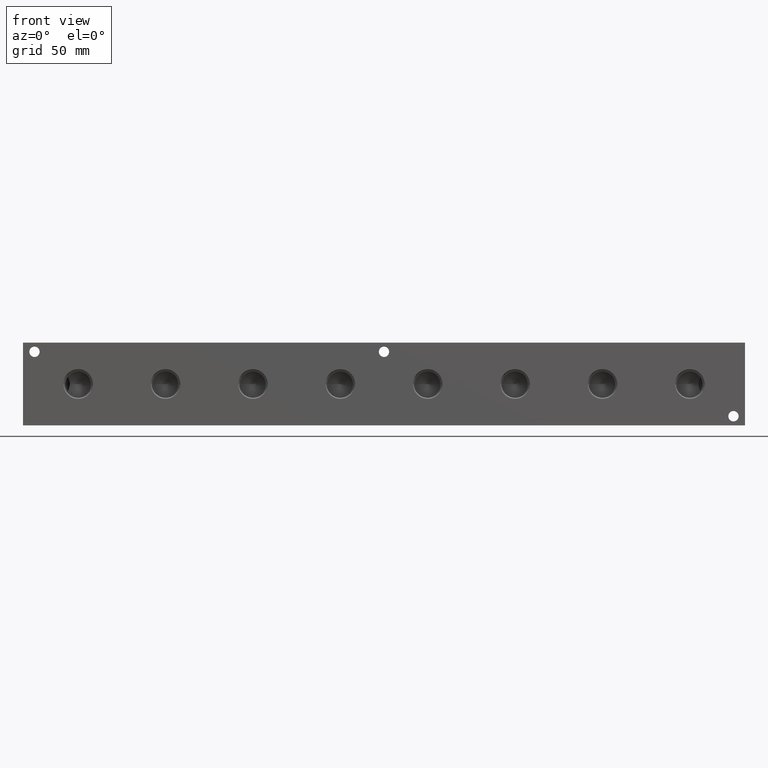
[diagram: clean part render]
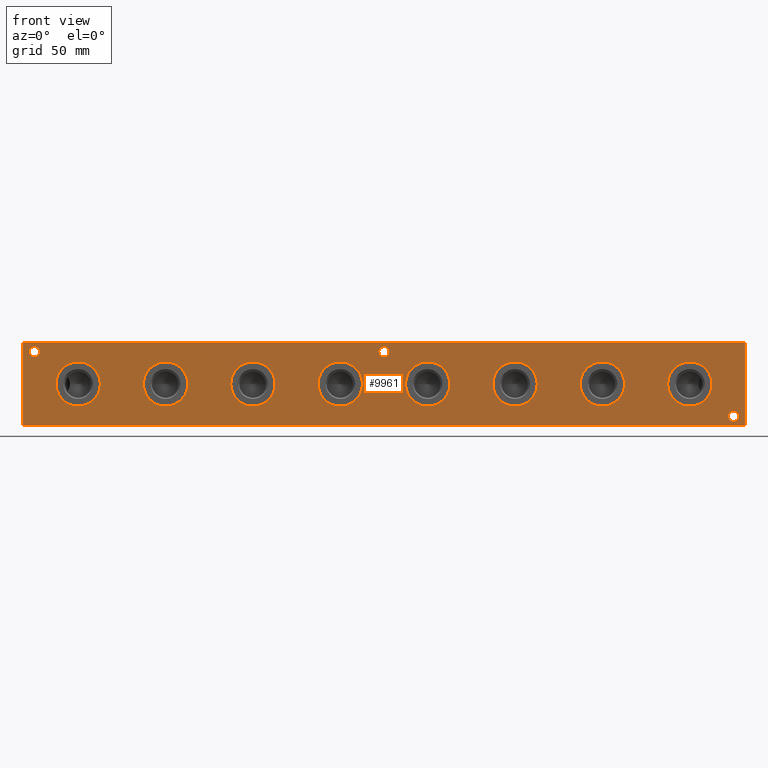
[diagram: same view with one face highlighted and labeled with its STEP entity id]
A machine part, front view. The second image highlights one B-rep face of the part: STEP entity #9961.
In plain terms, the highlighted planar face has unit normal (0, -1, 0).
Its self-contained STEP definition (entity closure, byte-faithful):
#202=CIRCLE('',#10195,3.5687);
#203=CIRCLE('',#10196,3.5687);
#205=CIRCLE('',#10205,3.5687);
#206=CIRCLE('',#10206,3.5687);
#208=CIRCLE('',#10214,3.5687);
#209=CIRCLE('',#10215,3.5687);
#211=CIRCLE('',#10225,15.3162);
#212=CIRCLE('',#10226,15.3162);
#222=CIRCLE('',#10241,15.3162);
#223=CIRCLE('',#10242,15.3162);
#233=CIRCLE('',#10257,15.3162);
#234=CIRCLE('',#10258,15.3162);
#244=CIRCLE('',#10273,15.3162);
#245=CIRCLE('',#10274,15.3162);
#255=CIRCLE('',#10289,15.3162);
#256=CIRCLE('',#10290,15.3162);
#266=CIRCLE('',#10305,15.3162);
#267=CIRCLE('',#10306,15.3162);
#277=CIRCLE('',#10321,15.3162);
#278=CIRCLE('',#10322,15.3162);
#332=CIRCLE('',#10415,15.3162);
#333=CIRCLE('',#10416,15.3162);
#593=FACE_BOUND('',#1962,.T.);
#594=FACE_BOUND('',#1963,.T.);
#595=FACE_BOUND('',#1964,.T.);
#596=FACE_BOUND('',#1965,.T.);
#597=FACE_BOUND('',#1966,.T.);
#598=FACE_BOUND('',#1967,.T.);
#599=FACE_BOUND('',#1968,.T.);
#600=FACE_BOUND('',#1969,.T.);
#601=FACE_BOUND('',#1970,.T.);
#602=FACE_BOUND('',#1971,.T.);
#603=FACE_BOUND('',#1972,.T.);
#840=PLANE('',#10707);
#1359=FACE_OUTER_BOUND('',#1961,.T.);
#1961=EDGE_LOOP('',(#8968,#8969,#8970,#8971));
#1962=EDGE_LOOP('',(#8972,#8973));
#1963=EDGE_LOOP('',(#8974,#8975));
#1964=EDGE_LOOP('',(#8976,#8977));
#1965=EDGE_LOOP('',(#8978,#8979));
#1966=EDGE_LOOP('',(#8980,#8981));
#1967=EDGE_LOOP('',(#8982,#8983));
#1968=EDGE_LOOP('',(#8984,#8985));
#1969=EDGE_LOOP('',(#8986,#8987));
#1970=EDGE_LOOP('',(#8988,#8989));
#1971=EDGE_LOOP('',(#8990,#8991));
#1972=EDGE_LOOP('',(#8992,#8993));
#2219=LINE('',#15513,#3003);
#2755=LINE('',#17627,#3539);
#2760=LINE('',#17636,#3544);
#2761=LINE('',#17638,#3545);
#3003=VECTOR('',#11055,10.);
#3539=VECTOR('',#12943,10.);
#3544=VECTOR('',#12952,10.);
#3545=VECTOR('',#12955,10.);
#4148=VERTEX_POINT('',#15511);
#4149=VERTEX_POINT('',#15512);
#4436=VERTEX_POINT('',#16474);
#4437=VERTEX_POINT('',#16475);
#4441=VERTEX_POINT('',#16492);
#4442=VERTEX_POINT('',#16493);
#4446=VERTEX_POINT('',#16508);
#4447=VERTEX_POINT('',#16509);
#4451=VERTEX_POINT('',#16528);
#4452=VERTEX_POINT('',#16529);
#4462=VERTEX_POINT('',#16559);
#4463=VERTEX_POINT('',#16560);
#4473=VERTEX_POINT('',#16590);
#4474=VERTEX_POINT('',#16591);
#4484=VERTEX_POINT('',#16621);
#4485=VERTEX_POINT('',#16622);
#4495=VERTEX_POINT('',#16652);
#4496=VERTEX_POINT('',#16653);
#4506=VERTEX_POINT('',#16683);
#4507=VERTEX_POINT('',#16684);
#4517=VERTEX_POINT('',#16714);
#4518=VERTEX_POINT('',#16715);
#4597=VERTEX_POINT('',#17036);
#4598=VERTEX_POINT('',#17037);
#4783=VERTEX_POINT('',#17625);
#4785=VERTEX_POINT('',#17634);
#5269=EDGE_CURVE('',#4148,#4149,#2219,.T.);
#5688=EDGE_CURVE('',#4436,#4437,#202,.T.);
#5689=EDGE_CURVE('',#4437,#4436,#203,.T.);
#5698=EDGE_CURVE('',#4441,#4442,#205,.T.);
#5699=EDGE_CURVE('',#4442,#4441,#206,.T.);
#5707=EDGE_CURVE('',#4446,#4447,#208,.T.);
#5708=EDGE_CURVE('',#4447,#4446,#209,.T.);
#5718=EDGE_CURVE('',#4451,#4452,#211,.T.);
#5719=EDGE_CURVE('',#4452,#4451,#212,.T.);
#5733=EDGE_CURVE('',#4462,#4463,#222,.T.);
#5734=EDGE_CURVE('',#4463,#4462,#223,.T.);
#5748=EDGE_CURVE('',#4473,#4474,#233,.T.);
#5749=EDGE_CURVE('',#4474,#4473,#234,.T.);
#5763=EDGE_CURVE('',#4484,#4485,#244,.T.);
#5764=EDGE_CURVE('',#4485,#4484,#245,.T.);
#5778=EDGE_CURVE('',#4495,#4496,#255,.T.);
#5779=EDGE_CURVE('',#4496,#4495,#256,.T.);
#5793=EDGE_CURVE('',#4506,#4507,#266,.T.);
#5794=EDGE_CURVE('',#4507,#4506,#267,.T.);
#5808=EDGE_CURVE('',#4517,#4518,#277,.T.);
#5809=EDGE_CURVE('',#4518,#4517,#278,.T.);
#5912=EDGE_CURVE('',#4597,#4598,#332,.T.);
#5913=EDGE_CURVE('',#4598,#4597,#333,.T.);
#6185=EDGE_CURVE('',#4783,#4148,#2755,.T.);
#6190=EDGE_CURVE('',#4785,#4149,#2760,.T.);
#6191=EDGE_CURVE('',#4783,#4785,#2761,.T.);
#8968=ORIENTED_EDGE('',*,*,#6191,.T.);
#8969=ORIENTED_EDGE('',*,*,#6190,.T.);
#8970=ORIENTED_EDGE('',*,*,#5269,.F.);
#8971=ORIENTED_EDGE('',*,*,#6185,.F.);
#8972=ORIENTED_EDGE('',*,*,#5688,.T.);
#8973=ORIENTED_EDGE('',*,*,#5689,.T.);
#8974=ORIENTED_EDGE('',*,*,#5698,.T.);
#8975=ORIENTED_EDGE('',*,*,#5699,.T.);
#8976=ORIENTED_EDGE('',*,*,#5707,.T.);
#8977=ORIENTED_EDGE('',*,*,#5708,.T.);
#8978=ORIENTED_EDGE('',*,*,#5718,.T.);
#8979=ORIENTED_EDGE('',*,*,#5719,.T.);
#8980=ORIENTED_EDGE('',*,*,#5733,.T.);
#8981=ORIENTED_EDGE('',*,*,#5734,.T.);
#8982=ORIENTED_EDGE('',*,*,#5748,.T.);
#8983=ORIENTED_EDGE('',*,*,#5749,.T.);
#8984=ORIENTED_EDGE('',*,*,#5763,.T.);
#8985=ORIENTED_EDGE('',*,*,#5764,.T.);
#8986=ORIENTED_EDGE('',*,*,#5778,.T.);
#8987=ORIENTED_EDGE('',*,*,#5779,.T.);
#8988=ORIENTED_EDGE('',*,*,#5793,.T.);
#8989=ORIENTED_EDGE('',*,*,#5794,.T.);
#8990=ORIENTED_EDGE('',*,*,#5808,.T.);
#8991=ORIENTED_EDGE('',*,*,#5809,.T.);
#8992=ORIENTED_EDGE('',*,*,#5912,.T.);
#8993=ORIENTED_EDGE('',*,*,#5913,.T.);
#9961=ADVANCED_FACE('',(#1359,#593,#594,#595,#596,#597,#598,#599,#600,#601,
#602,#603),#840,.T.);
#10195=AXIS2_PLACEMENT_3D('',#16476,#11768,#11769);
#10196=AXIS2_PLACEMENT_3D('',#16477,#11770,#11771);
#10205=AXIS2_PLACEMENT_3D('',#16494,#11791,#11792);
#10206=AXIS2_PLACEMENT_3D('',#16495,#11793,#11794);
#10214=AXIS2_PLACEMENT_3D('',#16510,#11811,#11812);
#10215=AXIS2_PLACEMENT_3D('',#16511,#11813,#11814);
#10225=AXIS2_PLACEMENT_3D('',#16530,#11837,#11838);
#10226=AXIS2_PLACEMENT_3D('',#16531,#11839,#11840);
#10241=AXIS2_PLACEMENT_3D('',#16561,#11873,#11874);
#10242=AXIS2_PLACEMENT_3D('',#16562,#11875,#11876);
#10257=AXIS2_PLACEMENT_3D('',#16592,#11909,#11910);
#10258=AXIS2_PLACEMENT_3D('',#16593,#11911,#11912);
#10273=AXIS2_PLACEMENT_3D('',#16623,#11945,#11946);
#10274=AXIS2_PLACEMENT_3D('',#16624,#11947,#11948);
#10289=AXIS2_PLACEMENT_3D('',#16654,#11981,#11982);
#10290=AXIS2_PLACEMENT_3D('',#16655,#11983,#11984);
#10305=AXIS2_PLACEMENT_3D('',#16685,#12017,#12018);
#10306=AXIS2_PLACEMENT_3D('',#16686,#12019,#12020);
#10321=AXIS2_PLACEMENT_3D('',#16716,#12053,#12054);
#10322=AXIS2_PLACEMENT_3D('',#16717,#12055,#12056);
#10415=AXIS2_PLACEMENT_3D('',#17038,#12271,#12272);
#10416=AXIS2_PLACEMENT_3D('',#17039,#12273,#12274);
#10707=AXIS2_PLACEMENT_3D('',#17637,#12953,#12954);
#11055=DIRECTION('',(1.,0.,0.));
#11768=DIRECTION('center_axis',(0.,1.,0.));
#11769=DIRECTION('ref_axis',(1.,0.,0.));
#11770=DIRECTION('center_axis',(0.,1.,0.));
#11771=DIRECTION('ref_axis',(1.,0.,0.));
#11791=DIRECTION('center_axis',(0.,1.,0.));
#11792=DIRECTION('ref_axis',(1.,0.,0.));
#11793=DIRECTION('center_axis',(0.,1.,0.));
#11794=DIRECTION('ref_axis',(1.,0.,0.));
#11811=DIRECTION('center_axis',(0.,1.,0.));
#11812=DIRECTION('ref_axis',(1.,0.,0.));
#11813=DIRECTION('center_axis',(0.,1.,0.));
#11814=DIRECTION('ref_axis',(1.,0.,0.));
#11837=DIRECTION('center_axis',(0.,1.,0.));
#11838=DIRECTION('ref_axis',(1.,0.,0.));
#11839=DIRECTION('center_axis',(0.,1.,0.));
#11840=DIRECTION('ref_axis',(1.,0.,0.));
#11873=DIRECTION('center_axis',(0.,1.,0.));
#11874=DIRECTION('ref_axis',(1.,0.,0.));
#11875=DIRECTION('center_axis',(0.,1.,0.));
#11876=DIRECTION('ref_axis',(1.,0.,0.));
#11909=DIRECTION('center_axis',(0.,1.,0.));
#11910=DIRECTION('ref_axis',(1.,0.,0.));
#11911=DIRECTION('center_axis',(0.,1.,0.));
#11912=DIRECTION('ref_axis',(1.,0.,0.));
#11945=DIRECTION('center_axis',(0.,1.,0.));
#11946=DIRECTION('ref_axis',(1.,0.,0.));
#11947=DIRECTION('center_axis',(0.,1.,0.));
#11948=DIRECTION('ref_axis',(1.,0.,0.));
#11981=DIRECTION('center_axis',(0.,1.,0.));
#11982=DIRECTION('ref_axis',(1.,0.,0.));
#11983=DIRECTION('center_axis',(0.,1.,0.));
#11984=DIRECTION('ref_axis',(1.,0.,0.));
#12017=DIRECTION('center_axis',(0.,1.,0.));
#12018=DIRECTION('ref_axis',(1.,0.,0.));
#12019=DIRECTION('center_axis',(0.,1.,0.));
#12020=DIRECTION('ref_axis',(1.,0.,0.));
#12053=DIRECTION('center_axis',(0.,1.,0.));
#12054=DIRECTION('ref_axis',(1.,0.,0.));
#12055=DIRECTION('center_axis',(0.,1.,0.));
#12056=DIRECTION('ref_axis',(1.,0.,0.));
#12271=DIRECTION('center_axis',(0.,1.,0.));
#12272=DIRECTION('ref_axis',(1.,0.,0.));
#12273=DIRECTION('center_axis',(0.,1.,0.));
#12274=DIRECTION('ref_axis',(1.,0.,0.));
#12943=DIRECTION('',(0.,0.,1.));
#12952=DIRECTION('',(0.,0.,1.));
#12953=DIRECTION('center_axis',(0.,-1.,0.));
#12954=DIRECTION('ref_axis',(1.,0.,0.));
#12955=DIRECTION('',(1.,0.,0.));
#15511=CARTESIAN_POINT('',(0.,0.,57.15));
#15512=CARTESIAN_POINT('',(498.475,0.,57.15));
#15513=CARTESIAN_POINT('',(0.,0.,57.15));
#16474=CARTESIAN_POINT('',(494.0935,0.,6.35));
#16475=CARTESIAN_POINT('',(486.9561,-7.105427357601E-14,6.35));
#16476=CARTESIAN_POINT('Origin',(490.5248,0.,6.35));
#16477=CARTESIAN_POINT('Origin',(490.5248,0.,6.35));
#16492=CARTESIAN_POINT('',(11.4935,0.,50.8));
#16493=CARTESIAN_POINT('',(4.3561,-7.105427357601E-14,50.8));
#16494=CARTESIAN_POINT('Origin',(7.9248,0.,50.8));
#16495=CARTESIAN_POINT('Origin',(7.9248,0.,50.8));
#16508=CARTESIAN_POINT('',(252.7935,0.,50.8));
#16509=CARTESIAN_POINT('',(245.6561,-7.105427357601E-14,50.8));
#16510=CARTESIAN_POINT('Origin',(249.2248,0.,50.8));
#16511=CARTESIAN_POINT('Origin',(249.2248,0.,50.8));
#16528=CARTESIAN_POINT('',(475.6912,0.,28.575));
#16529=CARTESIAN_POINT('',(445.0588,0.,28.575));
#16530=CARTESIAN_POINT('Origin',(460.375,0.,28.575));
#16531=CARTESIAN_POINT('Origin',(460.375,0.,28.575));
#16559=CARTESIAN_POINT('',(415.3662,0.,28.575));
#16560=CARTESIAN_POINT('',(384.7338,0.,28.575));
#16561=CARTESIAN_POINT('Origin',(400.05,0.,28.575));
#16562=CARTESIAN_POINT('Origin',(400.05,0.,28.575));
#16590=CARTESIAN_POINT('',(355.0412,0.,28.575));
#16591=CARTESIAN_POINT('',(324.4088,0.,28.575));
#16592=CARTESIAN_POINT('Origin',(339.725,0.,28.575));
#16593=CARTESIAN_POINT('Origin',(339.725,0.,28.575));
#16621=CARTESIAN_POINT('',(294.7162,0.,28.575));
#16622=CARTESIAN_POINT('',(264.0838,0.,28.575));
#16623=CARTESIAN_POINT('Origin',(279.4,0.,28.575));
#16624=CARTESIAN_POINT('Origin',(279.4,0.,28.575));
#16652=CARTESIAN_POINT('',(234.3912,0.,28.575));
#16653=CARTESIAN_POINT('',(203.7588,0.,28.575));
#16654=CARTESIAN_POINT('Origin',(219.075,0.,28.575));
#16655=CARTESIAN_POINT('Origin',(219.075,0.,28.575));
#16683=CARTESIAN_POINT('',(174.0662,0.,28.575));
#16684=CARTESIAN_POINT('',(143.4338,0.,28.575));
#16685=CARTESIAN_POINT('Origin',(158.75,0.,28.575));
#16686=CARTESIAN_POINT('Origin',(158.75,0.,28.575));
#16714=CARTESIAN_POINT('',(113.7412,0.,28.575));
#16715=CARTESIAN_POINT('',(83.1088,0.,28.575));
#16716=CARTESIAN_POINT('Origin',(98.425,0.,28.575));
#16717=CARTESIAN_POINT('Origin',(98.425,0.,28.575));
#17036=CARTESIAN_POINT('',(53.4162,0.,28.575));
#17037=CARTESIAN_POINT('',(22.7838,0.,28.575));
#17038=CARTESIAN_POINT('Origin',(38.1,0.,28.575));
#17039=CARTESIAN_POINT('Origin',(38.1,0.,28.575));
#17625=CARTESIAN_POINT('',(0.,0.,0.));
#17627=CARTESIAN_POINT('',(0.,0.,0.));
#17634=CARTESIAN_POINT('',(498.475,0.,0.));
#17636=CARTESIAN_POINT('',(498.475,0.,0.));
#17637=CARTESIAN_POINT('Origin',(0.,0.,0.));
#17638=CARTESIAN_POINT('',(0.,0.,0.));